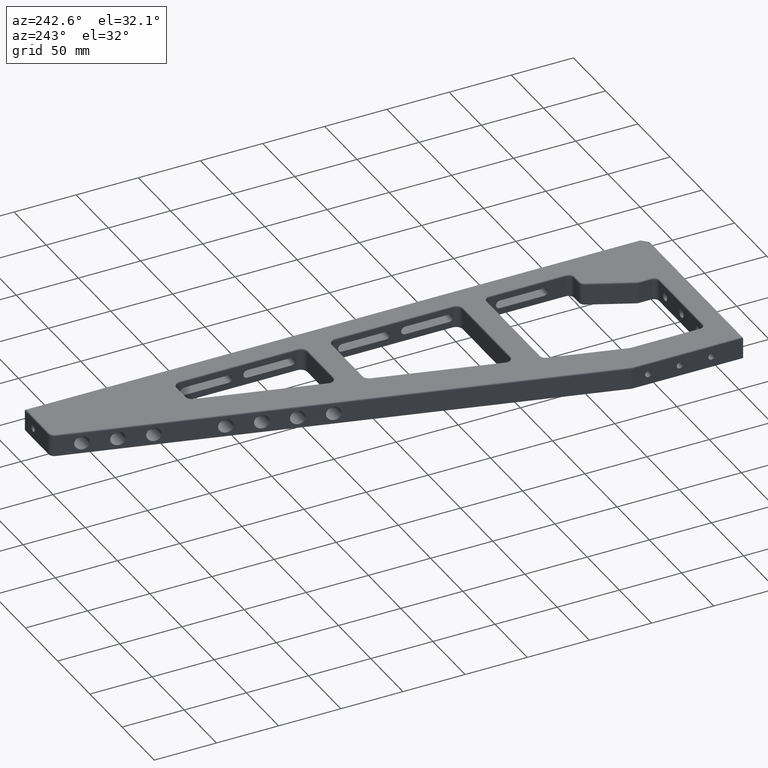
[diagram: clean part render]
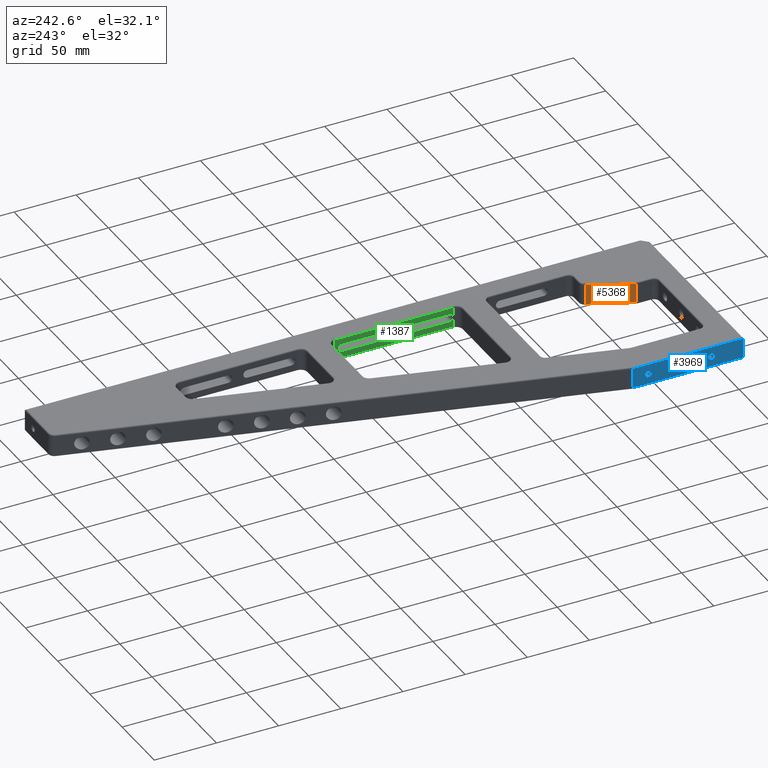
[diagram: same view with three faces highlighted in distinct colors, each labeled with its STEP entity id]
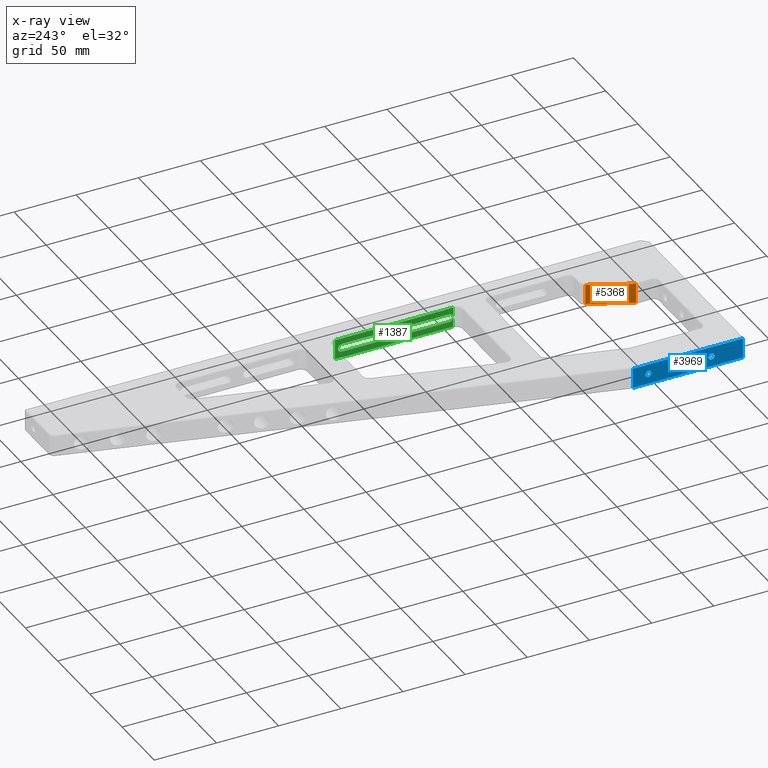
[diagram: x-ray of the same camera — body ghosted, the three highlighted faces saturated]
A machine part, auxiliary view with three faces highlighted in distinct colors.
The next image is the same camera in x-ray (body ghosted, the three faces saturated) — at least one of them is partly hidden behind the body in this view.
Their STEP definitions:

[orange] entity #5368 — the highlighted planar face has unit normal (0.9087, -0.4175, 0).
#284 = CARTESIAN_POINT ( 'NONE',  ( 115.6618247184273100, 67.08750085775355400, 17.00000000000001400 ) ) ;
#443 = CARTESIAN_POINT ( 'NONE',  ( 117.0000000000000000, 70.00000000000000000, -2.000000000000001800 ) ) ;
#568 = EDGE_LOOP ( 'NONE', ( #1624, #5972, #5518, #4412 ) ) ;
#667 = LINE ( 'NONE', #2496, #4794 ) ;
#678 = EDGE_CURVE ( 'NONE', #2785, #1548, #667, .T. ) ;
#971 = DIRECTION ( 'NONE',  ( 0.9086768439633127200, -0.4175001715507113400, 0.0000000000000000000 ) ) ;
#1063 = CARTESIAN_POINT ( 'NONE',  ( 115.6618247184273100, 67.08750085775355400, -2.000000000000001800 ) ) ;
#1377 = LINE ( 'NONE', #6165, #5336 ) ;
#1548 = VERTEX_POINT ( 'NONE', #1969 ) ;
#1624 = ORIENTED_EDGE ( 'NONE', *, *, #2075, .T. ) ;
#1714 = DIRECTION ( 'NONE',  ( -0.0000000000000000000, -0.0000000000000000000, -1.000000000000000000 ) ) ;
#1755 = AXIS2_PLACEMENT_3D ( 'NONE', #443, #971, #4730 ) ;
#1969 = CARTESIAN_POINT ( 'NONE',  ( 100.4566157801834400, 33.99381081569338600, 17.00000000000001400 ) ) ;
#2026 = EDGE_CURVE ( 'NONE', #1548, #4948, #3357, .T. ) ;
#2075 = EDGE_CURVE ( 'NONE', #4948, #4453, #2696, .T. ) ;
#2128 = CARTESIAN_POINT ( 'NONE',  ( 115.6618247184273100, 67.08750085775355400, 1.000000000000000900 ) ) ;
#2496 = CARTESIAN_POINT ( 'NONE',  ( 100.4566157801834400, 33.99381081569338600, -2.000000000000001800 ) ) ;
#2696 = LINE ( 'NONE', #1063, #5393 ) ;
#2769 = DIRECTION ( 'NONE',  ( 0.0000000000000000000, 0.0000000000000000000, 1.000000000000000000 ) ) ;
#2785 = VERTEX_POINT ( 'NONE', #4684 ) ;
#3304 = CARTESIAN_POINT ( 'NONE',  ( 115.6618247184273100, 67.08750085775355400, 17.00000000000001400 ) ) ;
#3357 = LINE ( 'NONE', #284, #4632 ) ;
#4152 = EDGE_CURVE ( 'NONE', #4453, #2785, #1377, .T. ) ;
#4412 = ORIENTED_EDGE ( 'NONE', *, *, #2026, .T. ) ;
#4453 = VERTEX_POINT ( 'NONE', #2128 ) ;
#4573 = DIRECTION ( 'NONE',  ( 0.4175001715507113400, 0.9086768439633127200, -0.0000000000000000000 ) ) ;
#4632 = VECTOR ( 'NONE', #4573, 1000.000000000000000 ) ;
#4684 = CARTESIAN_POINT ( 'NONE',  ( 100.4566157801834400, 33.99381081569338600, 1.000000000000000900 ) ) ;
#4730 = DIRECTION ( 'NONE',  ( 0.4175001715507113400, 0.9086768439633127200, 0.0000000000000000000 ) ) ;
#4794 = VECTOR ( 'NONE', #2769, 1000.000000000000000 ) ;
#4948 = VERTEX_POINT ( 'NONE', #3304 ) ;
#5336 = VECTOR ( 'NONE', #5615, 1000.000000000000000 ) ;
#5368 = ADVANCED_FACE ( 'NONE', ( #5638 ), #6888, .F. ) ;
#5393 = VECTOR ( 'NONE', #1714, 1000.000000000000000 ) ;
#5518 = ORIENTED_EDGE ( 'NONE', *, *, #678, .T. ) ;
#5615 = DIRECTION ( 'NONE',  ( -0.4175001715507113400, -0.9086768439633127200, -0.0000000000000000000 ) ) ;
#5638 = FACE_OUTER_BOUND ( 'NONE', #568, .T. ) ;
#5972 = ORIENTED_EDGE ( 'NONE', *, *, #4152, .T. ) ;
#6165 = CARTESIAN_POINT ( 'NONE',  ( 117.0000000000000000, 70.00000000000000000, 1.000000000000000900 ) ) ;
#6888 = PLANE ( 'NONE',  #1755 ) ;

[blue] entity #3969 — the highlighted planar face has unit normal (1, 0, 0).
#165 = ORIENTED_EDGE ( 'NONE', *, *, #2625, .F. ) ;
#187 = LINE ( 'NONE', #5102, #1584 ) ;
#221 = VECTOR ( 'NONE', #6882, 1000.000000000000000 ) ;
#333 = DIRECTION ( 'NONE',  ( -1.000000000000000000, -0.0000000000000000000, -0.0000000000000000000 ) ) ;
#593 = CIRCLE ( 'NONE', #3333, 2.552699999999998000 ) ;
#610 = CARTESIAN_POINT ( 'NONE',  ( 0.0000000000000000000, 50.79999999999999700, 11.55270000000000700 ) ) ;
#611 = LINE ( 'NONE', #5410, #5995 ) ;
#731 = CARTESIAN_POINT ( 'NONE',  ( 0.0000000000000000000, 25.40000000000000600, 6.447300000000010000 ) ) ;
#737 = VERTEX_POINT ( 'NONE', #3762 ) ;
#746 = CARTESIAN_POINT ( 'NONE',  ( 0.0000000000000000000, 25.40000000000000600, 11.55270000000000700 ) ) ;
#846 = DIRECTION ( 'NONE',  ( 0.0000000000000000000, 0.0000000000000000000, 1.000000000000000000 ) ) ;
#914 = ORIENTED_EDGE ( 'NONE', *, *, #5936, .F. ) ;
#961 = DIRECTION ( 'NONE',  ( -1.000000000000000000, -0.0000000000000000000, -0.0000000000000000000 ) ) ;
#1022 = CARTESIAN_POINT ( 'NONE',  ( 0.0000000000000000000, 88.81614867948134400, 1.000000000000000900 ) ) ;
#1043 = CIRCLE ( 'NONE', #6677, 2.552699999999998000 ) ;
#1118 = CIRCLE ( 'NONE', #2886, 2.552699999999998000 ) ;
#1273 = ORIENTED_EDGE ( 'NONE', *, *, #4859, .F. ) ;
#1323 = CARTESIAN_POINT ( 'NONE',  ( 0.0000000000000000000, 0.0000000000000000000, 17.00000000000001400 ) ) ;
#1332 = CARTESIAN_POINT ( 'NONE',  ( 0.0000000000000000000, 76.19999999999998900, 9.000000000000007100 ) ) ;
#1347 = DIRECTION ( 'NONE',  ( -3.877585676939323000E-017, 1.000000000000000000, -0.0000000000000000000 ) ) ;
#1471 = FACE_BOUND ( 'NONE', #5754, .T. ) ;
#1584 = VECTOR ( 'NONE', #1347, 1000.000000000000000 ) ;
#1590 = DIRECTION ( 'NONE',  ( -3.877585676939323000E-017, 1.000000000000000000, 0.0000000000000000000 ) ) ;
#1619 = LINE ( 'NONE', #3109, #221 ) ;
#1695 = DIRECTION ( 'NONE',  ( -1.000000000000000000, -0.0000000000000000000, -0.0000000000000000000 ) ) ;
#1701 = CARTESIAN_POINT ( 'NONE',  ( 0.0000000000000000000, 88.81614867948134400, 17.00000000000001400 ) ) ;
#1953 = EDGE_CURVE ( 'NONE', #5659, #2882, #2091, .T. ) ;
#1962 = ORIENTED_EDGE ( 'NONE', *, *, #4213, .F. ) ;
#2091 = CIRCLE ( 'NONE', #3118, 2.552699999999998000 ) ;
#2093 = DIRECTION ( 'NONE',  ( -1.000000000000000000, -0.0000000000000000000, -0.0000000000000000000 ) ) ;
#2169 = DIRECTION ( 'NONE',  ( -0.0000000000000000000, -0.0000000000000000000, -1.000000000000000000 ) ) ;
#2177 = EDGE_CURVE ( 'NONE', #2882, #5659, #593, .T. ) ;
#2567 = VERTEX_POINT ( 'NONE', #1022 ) ;
#2586 = DIRECTION ( 'NONE',  ( -1.000000000000000000, -0.0000000000000000000, -0.0000000000000000000 ) ) ;
#2625 = EDGE_CURVE ( 'NONE', #4342, #737, #5943, .T. ) ;
#2665 = PLANE ( 'NONE',  #5725 ) ;
#2882 = VERTEX_POINT ( 'NONE', #746 ) ;
#2886 = AXIS2_PLACEMENT_3D ( 'NONE', #5801, #2586, #6334 ) ;
#3004 = EDGE_CURVE ( 'NONE', #6155, #2567, #5939, .T. ) ;
#3081 = AXIS2_PLACEMENT_3D ( 'NONE', #1332, #2093, #5283 ) ;
#3109 = CARTESIAN_POINT ( 'NONE',  ( 0.0000000000000000000, 89.47441116741839600, 1.000000000000000900 ) ) ;
#3118 = AXIS2_PLACEMENT_3D ( 'NONE', #3519, #3503, #846 ) ;
#3166 = DIRECTION ( 'NONE',  ( 0.0000000000000000000, 0.0000000000000000000, -1.000000000000000000 ) ) ;
#3316 = ORIENTED_EDGE ( 'NONE', *, *, #2177, .F. ) ;
#3333 = AXIS2_PLACEMENT_3D ( 'NONE', #3411, #1695, #5195 ) ;
#3411 = CARTESIAN_POINT ( 'NONE',  ( 0.0000000000000000000, 25.40000000000000600, 9.000000000000007100 ) ) ;
#3503 = DIRECTION ( 'NONE',  ( -1.000000000000000000, -0.0000000000000000000, -0.0000000000000000000 ) ) ;
#3514 = CARTESIAN_POINT ( 'NONE',  ( 0.0000000000000000000, 50.79999999999999700, 9.000000000000007100 ) ) ;
#3519 = CARTESIAN_POINT ( 'NONE',  ( 0.0000000000000000000, 25.40000000000000600, 9.000000000000007100 ) ) ;
#3747 = ORIENTED_EDGE ( 'NONE', *, *, #1953, .F. ) ;
#3760 = EDGE_LOOP ( 'NONE', ( #3316, #3747 ) ) ;
#3762 = CARTESIAN_POINT ( 'NONE',  ( 0.0000000000000000000, 76.19999999999998900, 6.447300000000002900 ) ) ;
#3908 = CARTESIAN_POINT ( 'NONE',  ( 0.0000000000000000000, 88.81614867948134400, 18.00000000000001400 ) ) ;
#3969 = ADVANCED_FACE ( 'NONE', ( #4502, #4160, #1471, #5587 ), #2665, .F. ) ;
#4065 = DIRECTION ( 'NONE',  ( 0.0000000000000000000, 0.0000000000000000000, 1.000000000000000000 ) ) ;
#4160 = FACE_BOUND ( 'NONE', #4733, .T. ) ;
#4178 = CARTESIAN_POINT ( 'NONE',  ( 0.0000000000000000000, 76.19999999999998900, 9.000000000000007100 ) ) ;
#4213 = EDGE_CURVE ( 'NONE', #4506, #4239, #1043, .T. ) ;
#4239 = VERTEX_POINT ( 'NONE', #4614 ) ;
#4339 = EDGE_CURVE ( 'NONE', #2567, #5964, #1619, .T. ) ;
#4342 = VERTEX_POINT ( 'NONE', #6855 ) ;
#4502 = FACE_BOUND ( 'NONE', #3760, .T. ) ;
#4506 = VERTEX_POINT ( 'NONE', #610 ) ;
#4614 = CARTESIAN_POINT ( 'NONE',  ( 0.0000000000000000000, 50.79999999999999700, 6.447300000000010000 ) ) ;
#4720 = DIRECTION ( 'NONE',  ( 0.0000000000000000000, 0.0000000000000000000, 1.000000000000000000 ) ) ;
#4733 = EDGE_LOOP ( 'NONE', ( #1962, #6921 ) ) ;
#4793 = CARTESIAN_POINT ( 'NONE',  ( 0.0000000000000000000, 89.47441116741839600, 18.00000000000001400 ) ) ;
#4818 = DIRECTION ( 'NONE',  ( 1.000000000000000000, 3.877585676939323000E-017, -0.0000000000000000000 ) ) ;
#4859 = EDGE_CURVE ( 'NONE', #6297, #5964, #611, .T. ) ;
#5102 = CARTESIAN_POINT ( 'NONE',  ( 0.0000000000000000000, 88.81614867948134400, 17.00000000000001400 ) ) ;
#5195 = DIRECTION ( 'NONE',  ( 0.0000000000000000000, 0.0000000000000000000, 1.000000000000000000 ) ) ;
#5283 = DIRECTION ( 'NONE',  ( 0.0000000000000000000, 0.0000000000000000000, 1.000000000000000000 ) ) ;
#5410 = CARTESIAN_POINT ( 'NONE',  ( 0.0000000000000000000, 0.0000000000000000000, 18.00000000000001400 ) ) ;
#5423 = EDGE_LOOP ( 'NONE', ( #6018, #6174, #1273, #6436 ) ) ;
#5551 = CIRCLE ( 'NONE', #6525, 2.552700000000005100 ) ;
#5587 = FACE_OUTER_BOUND ( 'NONE', #5423, .T. ) ;
#5659 = VERTEX_POINT ( 'NONE', #731 ) ;
#5725 = AXIS2_PLACEMENT_3D ( 'NONE', #4793, #4818, #1590 ) ;
#5754 = EDGE_LOOP ( 'NONE', ( #165, #914 ) ) ;
#5768 = VECTOR ( 'NONE', #3166, 1000.000000000000000 ) ;
#5801 = CARTESIAN_POINT ( 'NONE',  ( 0.0000000000000000000, 50.79999999999999700, 9.000000000000007100 ) ) ;
#5936 = EDGE_CURVE ( 'NONE', #737, #4342, #5551, .T. ) ;
#5939 = LINE ( 'NONE', #3908, #5768 ) ;
#5943 = CIRCLE ( 'NONE', #3081, 2.552700000000005100 ) ;
#5964 = VERTEX_POINT ( 'NONE', #6923 ) ;
#5995 = VECTOR ( 'NONE', #2169, 1000.000000000000000 ) ;
#6018 = ORIENTED_EDGE ( 'NONE', *, *, #3004, .T. ) ;
#6155 = VERTEX_POINT ( 'NONE', #1701 ) ;
#6174 = ORIENTED_EDGE ( 'NONE', *, *, #4339, .T. ) ;
#6297 = VERTEX_POINT ( 'NONE', #1323 ) ;
#6334 = DIRECTION ( 'NONE',  ( 0.0000000000000000000, 0.0000000000000000000, 1.000000000000000000 ) ) ;
#6336 = EDGE_CURVE ( 'NONE', #6297, #6155, #187, .T. ) ;
#6436 = ORIENTED_EDGE ( 'NONE', *, *, #6336, .T. ) ;
#6509 = EDGE_CURVE ( 'NONE', #4239, #4506, #1118, .T. ) ;
#6525 = AXIS2_PLACEMENT_3D ( 'NONE', #4178, #961, #4720 ) ;
#6677 = AXIS2_PLACEMENT_3D ( 'NONE', #3514, #333, #4065 ) ;
#6855 = CARTESIAN_POINT ( 'NONE',  ( 0.0000000000000000000, 76.19999999999998900, 11.55270000000001200 ) ) ;
#6882 = DIRECTION ( 'NONE',  ( 3.877585676939323000E-017, -1.000000000000000000, 0.0000000000000000000 ) ) ;
#6921 = ORIENTED_EDGE ( 'NONE', *, *, #6509, .F. ) ;
#6923 = CARTESIAN_POINT ( 'NONE',  ( 0.0000000000000000000, 0.0000000000000000000, 1.000000000000000900 ) ) ;

[green] entity #1387 — the highlighted planar face has unit normal (1, 0, 0).
#88 = DIRECTION ( 'NONE',  ( 1.000000000000000000, 0.0000000000000000000, 0.0000000000000000000 ) ) ;
#170 = EDGE_CURVE ( 'NONE', #1422, #4259, #3397, .T. ) ;
#201 = CARTESIAN_POINT ( 'NONE',  ( 132.0000000000000000, 265.0000000000000000, 12.20000000000054300 ) ) ;
#287 = VERTEX_POINT ( 'NONE', #3449 ) ;
#403 = VERTEX_POINT ( 'NONE', #4980 ) ;
#408 = VERTEX_POINT ( 'NONE', #5529 ) ;
#418 = DIRECTION ( 'NONE',  ( 0.0000000000000000000, 1.000000000000000000, -0.0000000000000000000 ) ) ;
#561 = EDGE_CURVE ( 'NONE', #4928, #4248, #3060, .T. ) ;
#719 = ORIENTED_EDGE ( 'NONE', *, *, #6709, .T. ) ;
#796 = EDGE_CURVE ( 'NONE', #287, #403, #2529, .T. ) ;
#843 = CARTESIAN_POINT ( 'NONE',  ( 132.0000000000000000, 254.1999999999999900, 5.800000000000582500 ) ) ;
#1047 = CARTESIAN_POINT ( 'NONE',  ( 132.0000000000000000, 218.7999999999999800, 9.000000000000451200 ) ) ;
#1103 = EDGE_CURVE ( 'NONE', #1750, #5960, #5209, .T. ) ;
#1207 = CIRCLE ( 'NONE', #3593, 3.199999999999998000 ) ;
#1325 = FACE_BOUND ( 'NONE', #6475, .T. ) ;
#1380 = ORIENTED_EDGE ( 'NONE', *, *, #5561, .T. ) ;
#1387 = ADVANCED_FACE ( 'NONE', ( #5616, #1325 ), #3728, .F. ) ;
#1412 = AXIS2_PLACEMENT_3D ( 'NONE', #6355, #3136, #6908 ) ;
#1422 = VERTEX_POINT ( 'NONE', #4901 ) ;
#1465 = EDGE_CURVE ( 'NONE', #5679, #4081, #3180, .T. ) ;
#1498 = CARTESIAN_POINT ( 'NONE',  ( 132.0000000000000000, 203.3999999999999800, 5.800000000000416400 ) ) ;
#1536 = VECTOR ( 'NONE', #2229, 1000.000000000000000 ) ;
#1543 = ORIENTED_EDGE ( 'NONE', *, *, #6119, .T. ) ;
#1575 = DIRECTION ( 'NONE',  ( 1.000000000000000000, 0.0000000000000000000, 0.0000000000000000000 ) ) ;
#1711 = ORIENTED_EDGE ( 'NONE', *, *, #5369, .T. ) ;
#1750 = VERTEX_POINT ( 'NONE', #1784 ) ;
#1784 = CARTESIAN_POINT ( 'NONE',  ( 132.0000000000000000, 167.9999999999999700, 5.800000000000304500 ) ) ;
#1838 = CIRCLE ( 'NONE', #4939, 3.199999999999997100 ) ;
#2195 = ORIENTED_EDGE ( 'NONE', *, *, #1103, .T. ) ;
#2229 = DIRECTION ( 'NONE',  ( -0.0000000000000000000, 0.0000000000000000000, 1.000000000000000000 ) ) ;
#2378 = CIRCLE ( 'NONE', #5817, 3.199999999999998000 ) ;
#2402 = CIRCLE ( 'NONE', #5957, 3.199999999999998000 ) ;
#2415 = DIRECTION ( 'NONE',  ( -0.0000000000000000000, 1.000000000000000000, 8.673617379884029300E-017 ) ) ;
#2529 = LINE ( 'NONE', #5685, #3940 ) ;
#2589 = ORIENTED_EDGE ( 'NONE', *, *, #2777, .T. ) ;
#2756 = CARTESIAN_POINT ( 'NONE',  ( 132.0000000000000000, 260.0000000000000000, 0.0000000000000000000 ) ) ;
#2777 = EDGE_CURVE ( 'NONE', #6071, #1750, #2402, .T. ) ;
#2818 = CARTESIAN_POINT ( 'NONE',  ( 132.0000000000000000, 165.0000000000000000, 18.00000000000001400 ) ) ;
#2843 = CARTESIAN_POINT ( 'NONE',  ( 132.0000000000000000, 167.9999999999999700, 9.000000000000341100 ) ) ;
#2932 = EDGE_CURVE ( 'NONE', #4908, #1422, #5177, .T. ) ;
#2972 = AXIS2_PLACEMENT_3D ( 'NONE', #5194, #4941, #2995 ) ;
#2995 = DIRECTION ( 'NONE',  ( 0.0000000000000000000, 0.0000000000000000000, -1.000000000000000000 ) ) ;
#3038 = VECTOR ( 'NONE', #3289, 1000.000000000000000 ) ;
#3060 = LINE ( 'NONE', #6317, #5750 ) ;
#3136 = DIRECTION ( 'NONE',  ( 1.000000000000000000, 0.0000000000000000000, 0.0000000000000000000 ) ) ;
#3176 = CARTESIAN_POINT ( 'NONE',  ( 132.0000000000000000, 254.1999999999999900, 9.000000000000563100 ) ) ;
#3180 = LINE ( 'NONE', #5929, #4616 ) ;
#3241 = CARTESIAN_POINT ( 'NONE',  ( 132.0000000000000000, 165.0000000000000000, 7.886447127434248500 ) ) ;
#3282 = CARTESIAN_POINT ( 'NONE',  ( 132.0000000000000000, 203.4000000000000100, 9.000000000000451200 ) ) ;
#3289 = DIRECTION ( 'NONE',  ( 0.0000000000000000000, -0.0000000000000000000, -1.000000000000000000 ) ) ;
#3331 = EDGE_CURVE ( 'NONE', #408, #4928, #1207, .T. ) ;
#3397 = LINE ( 'NONE', #4170, #4671 ) ;
#3422 = ORIENTED_EDGE ( 'NONE', *, *, #5041, .T. ) ;
#3449 = CARTESIAN_POINT ( 'NONE',  ( 132.0000000000000000, 203.4000000000000100, 12.20000000000043300 ) ) ;
#3464 = DIRECTION ( 'NONE',  ( 1.000000000000000000, 0.0000000000000000000, 0.0000000000000000000 ) ) ;
#3593 = AXIS2_PLACEMENT_3D ( 'NONE', #1047, #1575, #5356 ) ;
#3693 = EDGE_LOOP ( 'NONE', ( #1380, #4752, #719, #2589, #2195, #1543, #5940, #1711, #5150, #4133 ) ) ;
#3700 = DIRECTION ( 'NONE',  ( 0.0000000000000000000, 0.0000000000000000000, -1.000000000000000000 ) ) ;
#3728 = PLANE ( 'NONE',  #2972 ) ;
#3735 = VECTOR ( 'NONE', #6571, 1000.000000000000000 ) ;
#3764 = VECTOR ( 'NONE', #4628, 1000.000000000000000 ) ;
#3810 = DIRECTION ( 'NONE',  ( 0.0000000000000000000, 0.0000000000000000000, -1.000000000000000000 ) ) ;
#3940 = VECTOR ( 'NONE', #5986, 1000.000000000000000 ) ;
#4061 = DIRECTION ( 'NONE',  ( -0.0000000000000000000, -1.000000000000000000, -0.0000000000000000000 ) ) ;
#4081 = VERTEX_POINT ( 'NONE', #6488 ) ;
#4133 = ORIENTED_EDGE ( 'NONE', *, *, #170, .T. ) ;
#4170 = CARTESIAN_POINT ( 'NONE',  ( 132.0000000000000000, 260.0000000000000000, 17.00000000000001400 ) ) ;
#4248 = VERTEX_POINT ( 'NONE', #843 ) ;
#4259 = VERTEX_POINT ( 'NONE', #6210 ) ;
#4375 = EDGE_CURVE ( 'NONE', #4248, #5445, #2378, .T. ) ;
#4588 = CARTESIAN_POINT ( 'NONE',  ( 132.0000000000000000, 265.0000000000000000, 5.800000000000416400 ) ) ;
#4616 = VECTOR ( 'NONE', #4061, 1000.000000000000000 ) ;
#4628 = DIRECTION ( 'NONE',  ( -0.0000000000000000000, 1.000000000000000000, 8.673617379884050300E-017 ) ) ;
#4639 = LINE ( 'NONE', #2756, #3038 ) ;
#4671 = VECTOR ( 'NONE', #418, 1000.000000000000000 ) ;
#4752 = ORIENTED_EDGE ( 'NONE', *, *, #1465, .T. ) ;
#4812 = VECTOR ( 'NONE', #6085, 1000.000000000000000 ) ;
#4898 = CARTESIAN_POINT ( 'NONE',  ( 132.0000000000000000, 218.7999999999999800, 5.800000000000471400 ) ) ;
#4901 = CARTESIAN_POINT ( 'NONE',  ( 132.0000000000000000, 165.0000000000000000, 17.00000000000001400 ) ) ;
#4908 = VERTEX_POINT ( 'NONE', #5436 ) ;
#4928 = VERTEX_POINT ( 'NONE', #4898 ) ;
#4939 = AXIS2_PLACEMENT_3D ( 'NONE', #3282, #88, #3810 ) ;
#4941 = DIRECTION ( 'NONE',  ( 1.000000000000000000, 0.0000000000000000000, 0.0000000000000000000 ) ) ;
#4972 = LINE ( 'NONE', #201, #4812 ) ;
#4980 = CARTESIAN_POINT ( 'NONE',  ( 132.0000000000000000, 167.9999999999999700, 12.20000000000032300 ) ) ;
#5041 = EDGE_CURVE ( 'NONE', #5445, #408, #4972, .T. ) ;
#5150 = ORIENTED_EDGE ( 'NONE', *, *, #2932, .T. ) ;
#5177 = LINE ( 'NONE', #2818, #3735 ) ;
#5194 = CARTESIAN_POINT ( 'NONE',  ( 132.0000000000000000, 265.0000000000000000, 0.0000000000000000000 ) ) ;
#5209 = LINE ( 'NONE', #4588, #3764 ) ;
#5334 = LINE ( 'NONE', #5472, #1536 ) ;
#5356 = DIRECTION ( 'NONE',  ( 0.0000000000000000000, 0.0000000000000000000, -1.000000000000000000 ) ) ;
#5369 = EDGE_CURVE ( 'NONE', #403, #4908, #5814, .T. ) ;
#5436 = CARTESIAN_POINT ( 'NONE',  ( 132.0000000000000000, 165.0000000000000000, 10.11355287256643400 ) ) ;
#5445 = VERTEX_POINT ( 'NONE', #6395 ) ;
#5472 = CARTESIAN_POINT ( 'NONE',  ( 132.0000000000000000, 165.0000000000000000, 18.00000000000001400 ) ) ;
#5529 = CARTESIAN_POINT ( 'NONE',  ( 132.0000000000000000, 218.7999999999999800, 12.20000000000054300 ) ) ;
#5561 = EDGE_CURVE ( 'NONE', #4259, #5679, #4639, .T. ) ;
#5573 = ORIENTED_EDGE ( 'NONE', *, *, #561, .T. ) ;
#5616 = FACE_OUTER_BOUND ( 'NONE', #3693, .T. ) ;
#5679 = VERTEX_POINT ( 'NONE', #6121 ) ;
#5685 = CARTESIAN_POINT ( 'NONE',  ( 132.0000000000000000, 265.0000000000000000, 12.20000000000043300 ) ) ;
#5750 = VECTOR ( 'NONE', #2415, 1000.000000000000000 ) ;
#5814 = CIRCLE ( 'NONE', #1412, 3.199999999999998000 ) ;
#5817 = AXIS2_PLACEMENT_3D ( 'NONE', #3176, #6951, #3700 ) ;
#5929 = CARTESIAN_POINT ( 'NONE',  ( 132.0000000000000000, 265.0000000000000000, 1.000000000000000900 ) ) ;
#5940 = ORIENTED_EDGE ( 'NONE', *, *, #796, .T. ) ;
#5957 = AXIS2_PLACEMENT_3D ( 'NONE', #2843, #3464, #6137 ) ;
#5960 = VERTEX_POINT ( 'NONE', #1498 ) ;
#5986 = DIRECTION ( 'NONE',  ( 0.0000000000000000000, -1.000000000000000000, 0.0000000000000000000 ) ) ;
#6071 = VERTEX_POINT ( 'NONE', #3241 ) ;
#6085 = DIRECTION ( 'NONE',  ( 0.0000000000000000000, -1.000000000000000000, 0.0000000000000000000 ) ) ;
#6119 = EDGE_CURVE ( 'NONE', #5960, #287, #1838, .T. ) ;
#6121 = CARTESIAN_POINT ( 'NONE',  ( 132.0000000000000000, 260.0000000000000000, 1.000000000000000900 ) ) ;
#6137 = DIRECTION ( 'NONE',  ( 0.0000000000000000000, 0.0000000000000000000, -1.000000000000000000 ) ) ;
#6210 = CARTESIAN_POINT ( 'NONE',  ( 132.0000000000000000, 260.0000000000000000, 17.00000000000001400 ) ) ;
#6317 = CARTESIAN_POINT ( 'NONE',  ( 132.0000000000000000, 265.0000000000000000, 5.800000000000582500 ) ) ;
#6355 = CARTESIAN_POINT ( 'NONE',  ( 132.0000000000000000, 167.9999999999999700, 9.000000000000341100 ) ) ;
#6395 = CARTESIAN_POINT ( 'NONE',  ( 132.0000000000000000, 254.1999999999999900, 12.20000000000054300 ) ) ;
#6475 = EDGE_LOOP ( 'NONE', ( #3422, #6713, #5573, #6489 ) ) ;
#6488 = CARTESIAN_POINT ( 'NONE',  ( 132.0000000000000000, 165.0000000000000000, 1.000000000000000900 ) ) ;
#6489 = ORIENTED_EDGE ( 'NONE', *, *, #4375, .T. ) ;
#6571 = DIRECTION ( 'NONE',  ( -0.0000000000000000000, 0.0000000000000000000, 1.000000000000000000 ) ) ;
#6709 = EDGE_CURVE ( 'NONE', #4081, #6071, #5334, .T. ) ;
#6713 = ORIENTED_EDGE ( 'NONE', *, *, #3331, .T. ) ;
#6908 = DIRECTION ( 'NONE',  ( 0.0000000000000000000, 0.0000000000000000000, -1.000000000000000000 ) ) ;
#6951 = DIRECTION ( 'NONE',  ( 1.000000000000000000, 0.0000000000000000000, 0.0000000000000000000 ) ) ;